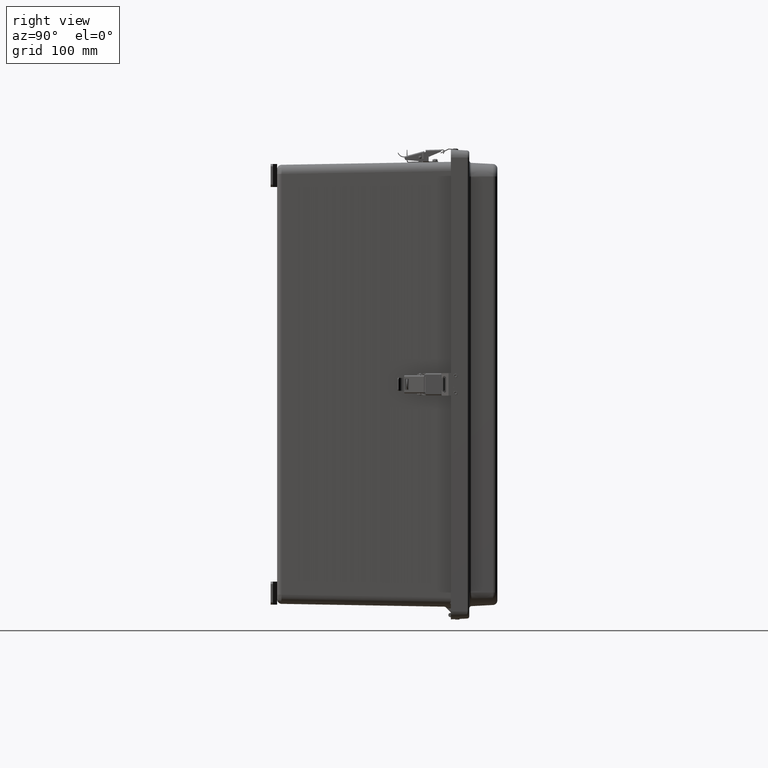
[diagram: clean part render]
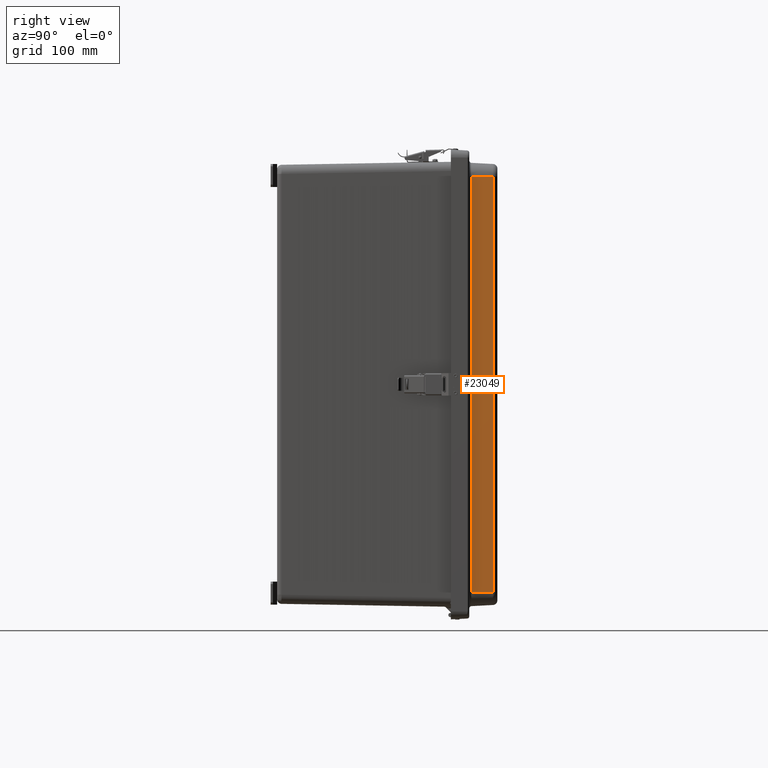
[diagram: same view with one face highlighted and labeled with its STEP entity id]
A machine part, right view. The second image highlights one B-rep face of the part: STEP entity #23049.
In plain terms, the highlighted planar face has unit normal (0.9986, 0.0523, 0).
Its self-contained STEP definition (entity closure, byte-faithful):
#4181 = VERTEX_POINT ( 'NONE', #47065 ) ;
#5902 = LINE ( 'NONE', #34667, #43569 ) ;
#7360 = LINE ( 'NONE', #26858, #18874 ) ;
#8505 = DIRECTION ( 'NONE',  ( -0.9986295347545739400, -0.05233595624294401500, 0.0000000000000000000 ) ) ;
#8915 = ORIENTED_EDGE ( 'NONE', *, *, #33122, .T. ) ;
#17019 = DIRECTION ( 'NONE',  ( 0.0000000000000000000, 0.0000000000000000000, -1.000000000000000000 ) ) ;
#17951 = EDGE_CURVE ( 'NONE', #27882, #28582, #5902, .T. ) ;
#18874 = VECTOR ( 'NONE', #31813, 39.37007874015748100 ) ;
#21745 = CARTESIAN_POINT ( 'NONE',  ( -12.07179187899504700, -1.118458005469632000, 11.32800000000000100 ) ) ;
#23049 = ADVANCED_FACE ( 'NONE', ( #45946 ), #57455, .T. ) ;
#23965 = EDGE_CURVE ( 'NONE', #27882, #61351, #7360, .T. ) ;
#24138 = DIRECTION ( 'NONE',  ( -0.05233595624294400800, 0.9986295347545738300, 0.0000000000000000000 ) ) ;
#25013 = ORIENTED_EDGE ( 'NONE', *, *, #23965, .F. ) ;
#25509 = LINE ( 'NONE', #21745, #63116 ) ;
#26858 = CARTESIAN_POINT ( 'NONE',  ( -12.07800000000000800, -1.000000000000000000, -11.32800000000000500 ) ) ;
#27882 = VERTEX_POINT ( 'NONE', #47558 ) ;
#28582 = VERTEX_POINT ( 'NONE', #34566 ) ;
#30951 = VECTOR ( 'NONE', #24138, 39.37007874015748100 ) ;
#31813 = DIRECTION ( 'NONE',  ( -0.05233595624294400800, 0.9986295347545738300, 3.050109377254125000E-016 ) ) ;
#33122 = EDGE_CURVE ( 'NONE', #28582, #4181, #44030, .T. ) ;
#34566 = CARTESIAN_POINT ( 'NONE',  ( -12.01023233970687800, -2.293083989060734900, 11.32800000000000100 ) ) ;
#34667 = CARTESIAN_POINT ( 'NONE',  ( -12.01023233970687800, -2.293083989060735300, 11.32800000000000100 ) ) ;
#36047 = ORIENTED_EDGE ( 'NONE', *, *, #52515, .T. ) ;
#36263 = CARTESIAN_POINT ( 'NONE',  ( -12.07179187899504700, -1.118458005469632000, -11.32800000000000500 ) ) ;
#39596 = DIRECTION ( 'NONE',  ( -0.0000000000000000000, -0.0000000000000000000, 1.000000000000000000 ) ) ;
#40116 = AXIS2_PLACEMENT_3D ( 'NONE', #62389, #8505, #42910 ) ;
#42910 = DIRECTION ( 'NONE',  ( 0.05233595624294400800, -0.9986295347545738300, 0.0000000000000000000 ) ) ;
#43569 = VECTOR ( 'NONE', #39596, 39.37007874015748100 ) ;
#44030 = LINE ( 'NONE', #63407, #30951 ) ;
#44379 = EDGE_LOOP ( 'NONE', ( #8915, #36047, #25013, #59459 ) ) ;
#45946 = FACE_OUTER_BOUND ( 'NONE', #44379, .T. ) ;
#47065 = CARTESIAN_POINT ( 'NONE',  ( -12.07179187899504700, -1.118458005469632000, 11.32800000000000100 ) ) ;
#47558 = CARTESIAN_POINT ( 'NONE',  ( -12.01023233970687800, -2.293083989060734900, -11.32800000000000500 ) ) ;
#52515 = EDGE_CURVE ( 'NONE', #4181, #61351, #25509, .T. ) ;
#57455 = PLANE ( 'NONE',  #40116 ) ;
#59459 = ORIENTED_EDGE ( 'NONE', *, *, #17951, .T. ) ;
#61351 = VERTEX_POINT ( 'NONE', #36263 ) ;
#62389 = CARTESIAN_POINT ( 'NONE',  ( -12.07800000000000800, -1.000000000000000000, 11.32800000000000100 ) ) ;
#63116 = VECTOR ( 'NONE', #17019, 39.37007874015748100 ) ;
#63407 = CARTESIAN_POINT ( 'NONE',  ( -12.07800000000000800, -1.000000000000000000, 11.32800000000000100 ) ) ;